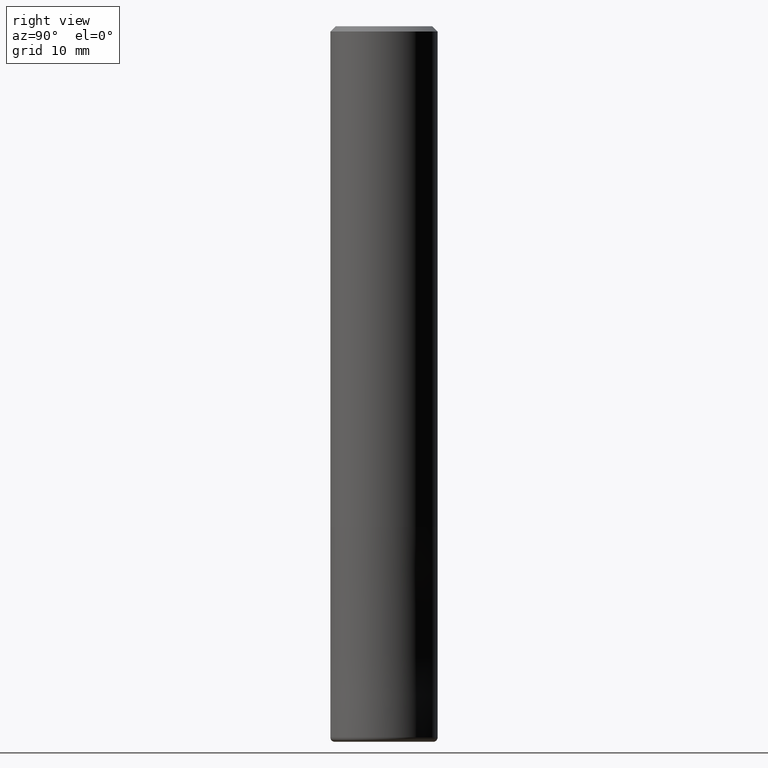
[diagram: clean part render]
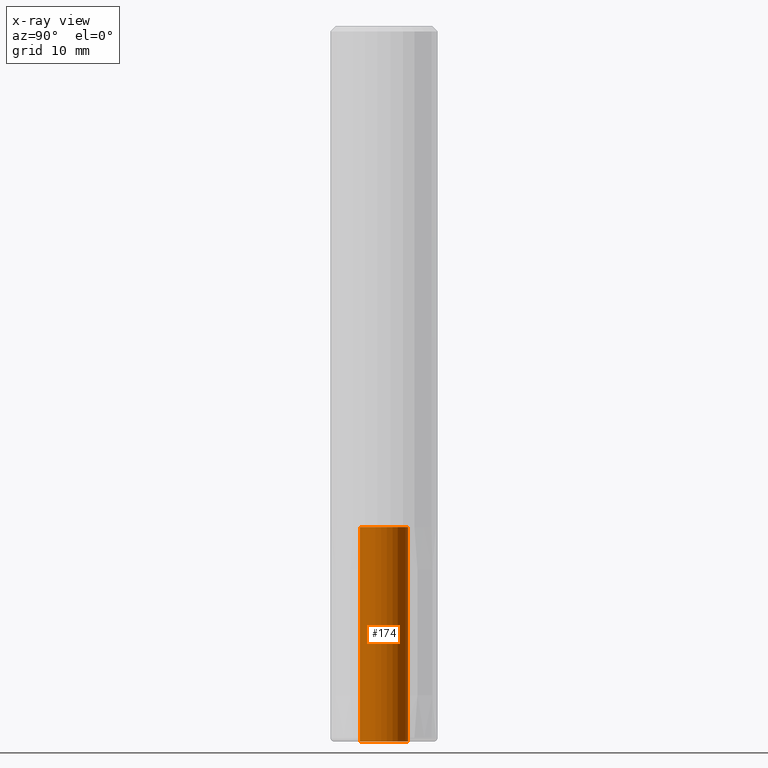
[diagram: x-ray — body ghosted, one internal face saturated and labeled with its STEP entity id]
A machine part, right view, then the same camera in x-ray: the body is ghosted and one INTERNAL B-rep face — a face not visible from any outside direction — is saturated and labeled: STEP entity #174.
In plain terms, the highlighted cylindrical surface (edge-blend (fillet) strip) has radius 2.7 mm, axis along (-0, -0, 1).
Its self-contained STEP definition (entity closure, byte-faithful):
#104=VERTEX_POINT('',#265);
#130=EDGE_CURVE('',#104,#198,#292,.T.);
#164=EDGE_CURVE('',#198,#176,#334,.T.);
#174=ADVANCED_FACE('',(#344),#345,.F.);
#176=VERTEX_POINT('',#347);
#178=EDGE_CURVE('',#236,#104,#349,.T.);
#198=VERTEX_POINT('',#373);
#236=VERTEX_POINT('',#417);
#242=EDGE_CURVE('',#236,#176,#423,.T.);
#265=CARTESIAN_POINT('',(0.0,2.7,-80.0));
#292=CIRCLE('',#474,2.7);
#334=LINE('',#526,#527);
#344=FACE_OUTER_BOUND('',#540,.T.);
#345=CYLINDRICAL_SURFACE('',#541,2.7);
#347=CARTESIAN_POINT('',(3.30643715532042E-016,-2.7,-56.0));
#349=LINE('',#546,#547);
#373=CARTESIAN_POINT('',(3.30643715532042E-016,-2.7,-80.0));
#417=CARTESIAN_POINT('',(0.0,2.7,-56.0));
#423=CIRCLE('',#635,2.7);
#474=AXIS2_PLACEMENT_3D('',#666,#667,#668);
#526=CARTESIAN_POINT('',(3.30643715532042E-016,-2.7,-68.0));
#527=VECTOR('',#734,1.0);
#540=EDGE_LOOP('',(#740,#741,#742,#743));
#541=AXIS2_PLACEMENT_3D('',#744,#745,#746);
#546=CARTESIAN_POINT('',(-3.30643715532042E-016,2.7,-68.0));
#547=VECTOR('',#747,1.0);
#635=AXIS2_PLACEMENT_3D('',#844,#845,#846);
#666=CARTESIAN_POINT('',(0.0,0.0,-80.0));
#667=DIRECTION('',(0.0,0.0,-1.0));
#668=DIRECTION('',(0.0,1.0,0.0));
#734=DIRECTION('',(0.0,-0.0,1.0));
#740=ORIENTED_EDGE('',*,*,#178,.T.);
#741=ORIENTED_EDGE('',*,*,#130,.T.);
#742=ORIENTED_EDGE('',*,*,#164,.T.);
#743=ORIENTED_EDGE('',*,*,#242,.F.);
#744=CARTESIAN_POINT('',(0.0,0.0,-68.0));
#745=DIRECTION('',(-0.0,-0.0,1.0));
#746=DIRECTION('',(0.0,1.0,0.0));
#747=DIRECTION('',(0.0,-0.0,-1.0));
#844=CARTESIAN_POINT('',(0.0,0.0,-56.0));
#845=DIRECTION('',(0.0,0.0,-1.0));
#846=DIRECTION('',(0.0,1.0,0.0));